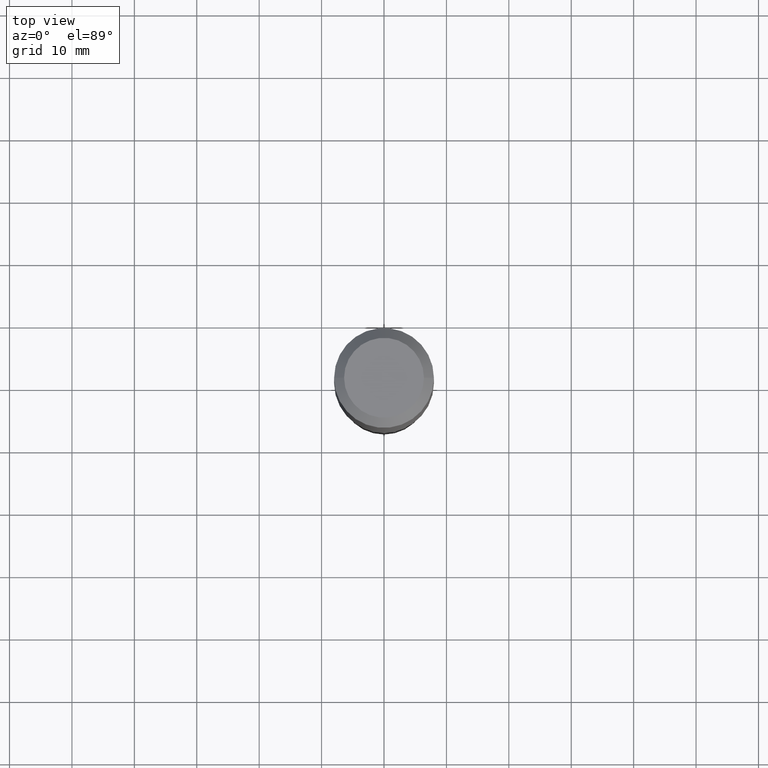
[diagram: clean part render]
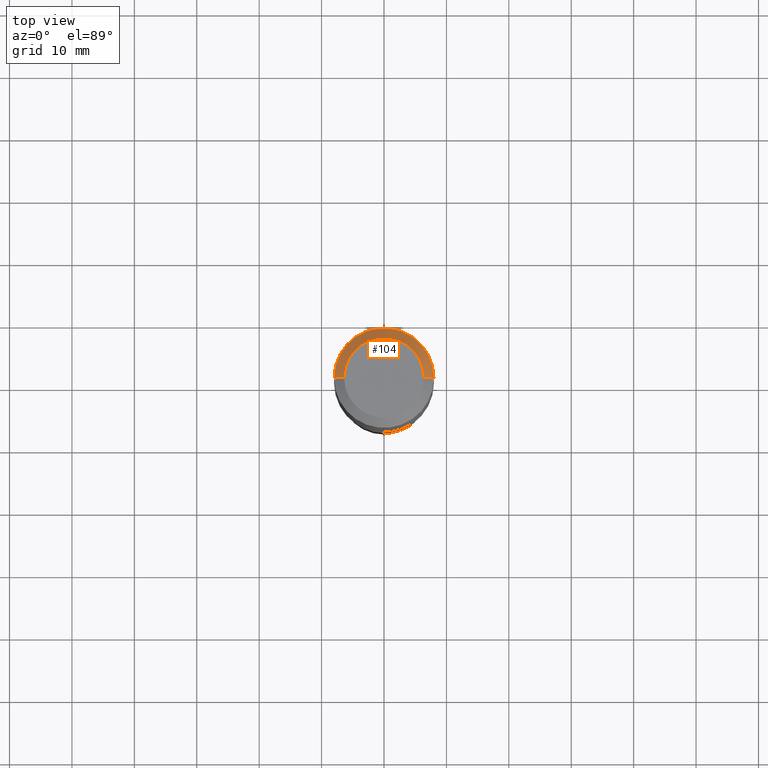
[diagram: same view with one face highlighted and labeled with its STEP entity id]
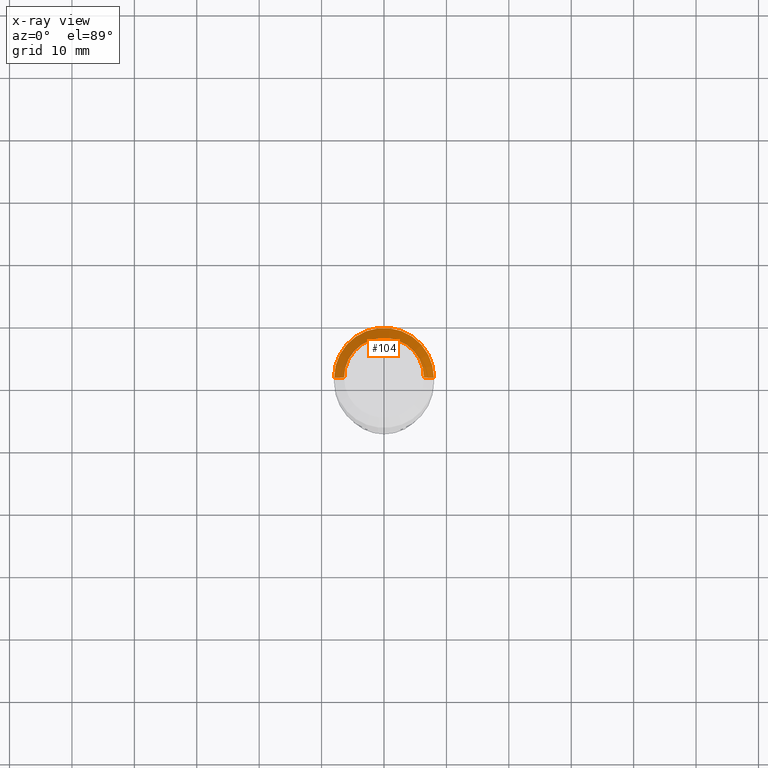
[diagram: x-ray of the same camera — body ghosted, the highlighted face saturated]
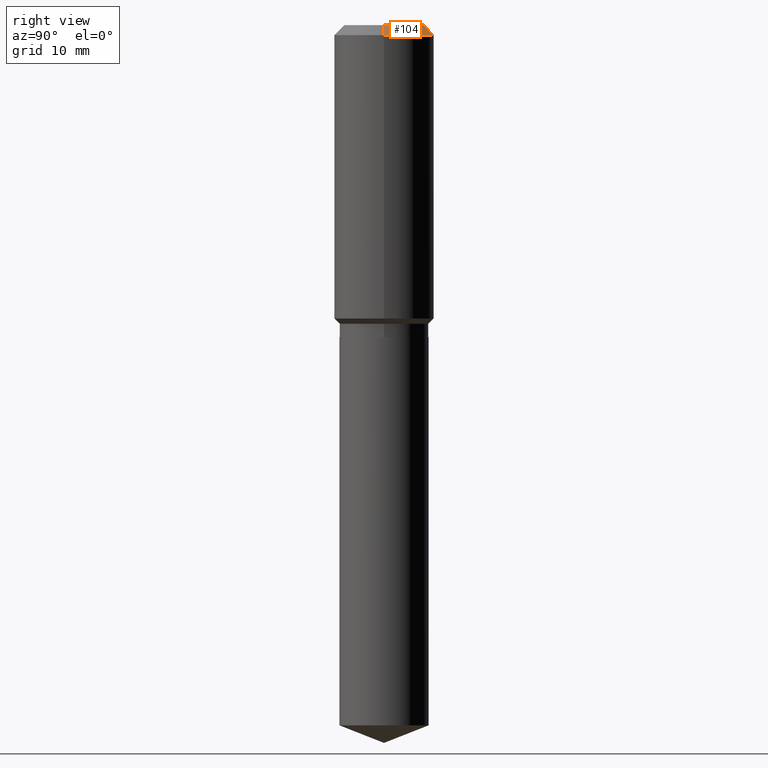
[diagram: same view with one face highlighted and labeled with its STEP entity id]
A machine part, top view. The second image highlights one B-rep face of the part: STEP entity #104.
The next image is the same camera in x-ray: the body ghosted, the highlighted face saturated — about 0% of this face is hidden behind the body in this view.
A second angle (right view) of the same face is appended — the face is thin or edge-on in the first view.
In plain terms, the highlighted conical surface has half-angle 45 deg.
Its self-contained STEP definition (entity closure, byte-faithful):
#8 = ORIENTED_EDGE ( 'NONE', *, *, #27, .T. ) ;
#25 = AXIS2_PLACEMENT_3D ( 'NONE', #32, #185, #333 ) ;
#27 = EDGE_CURVE ( 'NONE', #76, #33, #431, .T. ) ;
#32 = CARTESIAN_POINT ( 'NONE',  ( -9.427742298522569579E-47, 1.346031739168368629E-32, 3.855188123715871501E-18 ) ) ;
#33 = VERTEX_POINT ( 'NONE', #214 ) ;
#34 = CARTESIAN_POINT ( 'NONE',  ( 0.3149500000000000077, -2.380642253931875190E-15, -0.06299000000000037902 ) ) ;
#49 = CARTESIAN_POINT ( 'NONE',  ( -0.3149500000000000077, 1.979355685803558833E-15, -0.06299000000000037902 ) ) ;
#72 = ORIENTED_EDGE ( 'NONE', *, *, #433, .F. ) ;
#76 = VERTEX_POINT ( 'NONE', #103 ) ;
#80 = DIRECTION ( 'NONE',  ( -0.7071067811865453523, 2.468850131082234184E-15, -0.7071067811865496822 ) ) ;
#101 = FACE_OUTER_BOUND ( 'NONE', #485, .T. ) ;
#103 = CARTESIAN_POINT ( 'NONE',  ( 0.3149500000000000077, -2.419212504871020909E-15, -0.06299000000000037902 ) ) ;
#104 = ADVANCED_FACE ( 'NONE', ( #101 ), #163, .T. ) ;
#117 = CIRCLE ( 'NONE', #25, 0.2519600000000000173 ) ;
#120 = DIRECTION ( 'NONE',  ( -2.445468806185136597E-29, 3.491481338843145583E-15, 1.000000000000000000 ) ) ;
#131 = VERTEX_POINT ( 'NONE', #363 ) ;
#140 = CARTESIAN_POINT ( 'NONE',  ( 1.540400801016026505E-30, -2.199284095337310628E-16, -0.06299000000000037902 ) ) ;
#151 = DIRECTION ( 'NONE',  ( 0.7071067811865453523, -7.319954787623248157E-15, -0.7071067811865496822 ) ) ;
#152 = VERTEX_POINT ( 'NONE', #326 ) ;
#163 = CONICAL_SURFACE ( 'NONE', #245, 0.3149500000000000077, 0.7853981633974452814 ) ;
#185 = DIRECTION ( 'NONE',  ( -2.445468806185136597E-29, 3.491481338843145583E-15, 1.000000000000000000 ) ) ;
#214 = CARTESIAN_POINT ( 'NONE',  ( -0.3149500000000000077, -1.102428393188106153E-15, -0.06299000000000037902 ) ) ;
#216 = LINE ( 'NONE', #34, #366 ) ;
#244 = EDGE_CURVE ( 'NONE', #131, #76, #216, .T. ) ;
#245 = AXIS2_PLACEMENT_3D ( 'NONE', #140, #248, #469 ) ;
#248 = DIRECTION ( 'NONE',  ( 2.445468806185136597E-29, -3.491481338843145583E-15, -1.000000000000000000 ) ) ;
#263 = VECTOR ( 'NONE', #80, 39.37007874015748143 ) ;
#273 = DIRECTION ( 'NONE',  ( 1.000000000000000000, -6.982962677686266711E-15, 0.000000000000000000 ) ) ;
#308 = LINE ( 'NONE', #49, #263 ) ;
#326 = CARTESIAN_POINT ( 'NONE',  ( -0.2519600000000000173, 1.869391481036695286E-15, 3.855188123703182704E-18 ) ) ;
#333 = DIRECTION ( 'NONE',  ( 1.000000000000000000, -6.982962677686266711E-15, 4.876115136096691995E-29 ) ) ;
#344 = EDGE_CURVE ( 'NONE', #131, #152, #117, .T. ) ;
#363 = CARTESIAN_POINT ( 'NONE',  ( 0.2519600000000000173, -2.054606664725195058E-15, 3.855188123729206640E-18 ) ) ;
#366 = VECTOR ( 'NONE', #151, 39.37007874015748143 ) ;
#392 = AXIS2_PLACEMENT_3D ( 'NONE', #455, #120, #273 ) ;
#431 = CIRCLE ( 'NONE', #392, 0.3149500000000000077 ) ;
#433 = EDGE_CURVE ( 'NONE', #152, #33, #308, .T. ) ;
#444 = ORIENTED_EDGE ( 'NONE', *, *, #344, .F. ) ;
#455 = CARTESIAN_POINT ( 'NONE',  ( 1.540400801016026505E-30, -2.199284095337310628E-16, -0.06299000000000037902 ) ) ;
#464 = ORIENTED_EDGE ( 'NONE', *, *, #244, .T. ) ;
#469 = DIRECTION ( 'NONE',  ( -1.000000000000000000, 6.982962677686266711E-15, 0.000000000000000000 ) ) ;
#485 = EDGE_LOOP ( 'NONE', ( #444, #464, #8, #72 ) ) ;